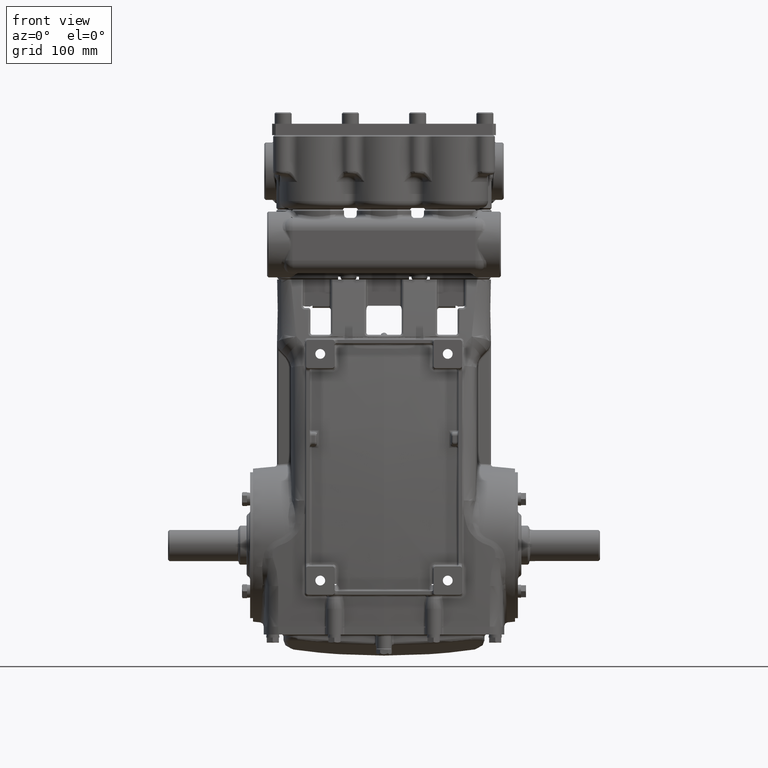
[diagram: clean part render]
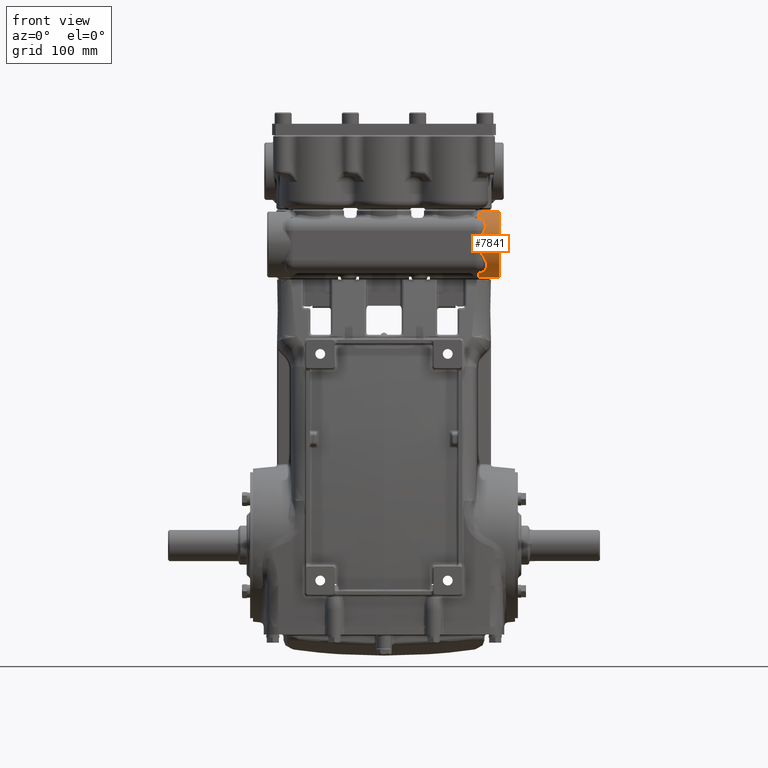
[diagram: same view with one face highlighted and labeled with its STEP entity id]
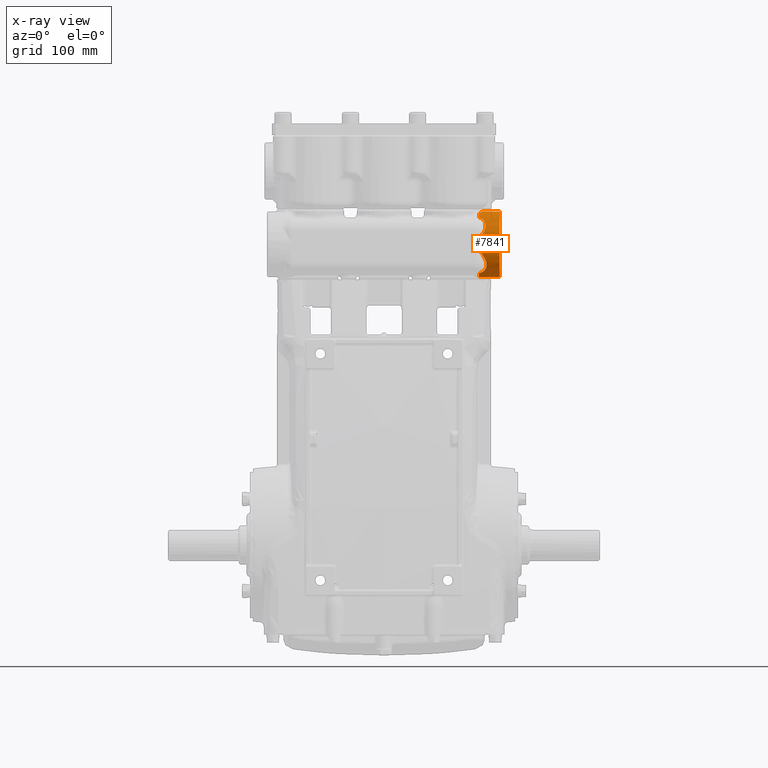
[diagram: x-ray of the same camera — body ghosted, the highlighted face saturated]
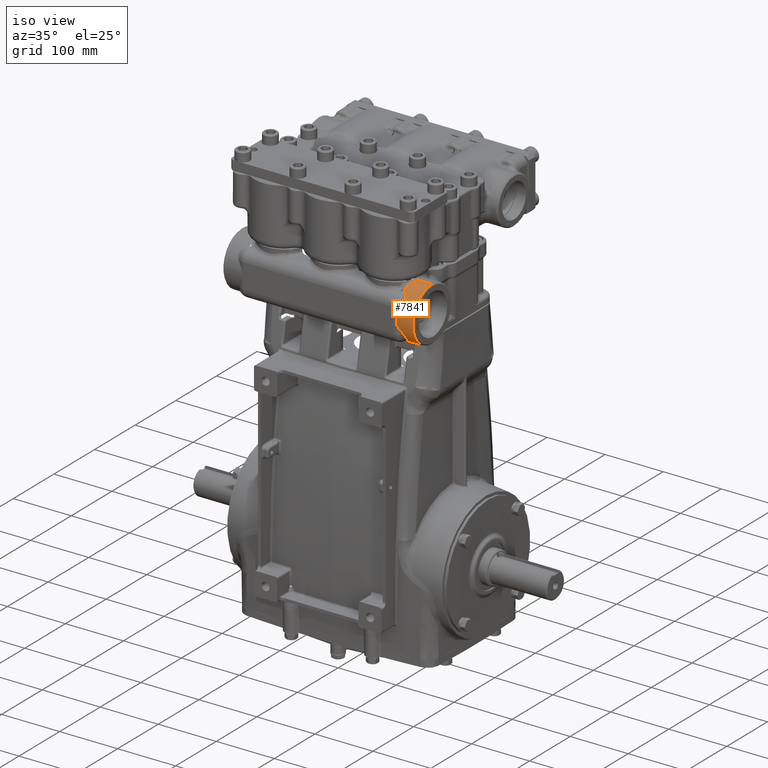
[diagram: same view with one face highlighted and labeled with its STEP entity id]
A machine part, front view. The second image highlights one B-rep face of the part: STEP entity #7841.
The next image is the same camera in x-ray: the body ghosted, the highlighted face saturated — about 0% of this face is hidden behind the body in this view.
A second angle (iso view) of the same face is appended — the face is thin or edge-on in the first view.
In plain terms, the highlighted cylindrical surface (edge-blend (fillet) strip) has radius 46.5 mm, axis along (1, -0, -0).
Its self-contained STEP definition (entity closure, byte-faithful):
#371 = CARTESIAN_POINT ( 'NONE',  ( 5.275590551181106314, -5.823880917355877429, 16.99921606258273243 ) ) ;
#743 = CARTESIAN_POINT ( 'NONE',  ( 5.499922897870840544, -5.054010725184167718, 15.20448149480859357 ) ) ;
#1031 = AXIS2_PLACEMENT_3D ( 'NONE', #23275, #89001, #32749 ) ;
#1131 = VERTEX_POINT ( 'NONE', #85562 ) ;
#2157 = EDGE_CURVE ( 'NONE', #10489, #29396, #15134, .T. ) ;
#2613 = CARTESIAN_POINT ( 'NONE',  ( 5.656548045205660458, -5.258997049725187445, 15.36813760360032965 ) ) ;
#3132 = VECTOR ( 'NONE', #111522, 39.37007874015748143 ) ;
#3749 = CARTESIAN_POINT ( 'NONE',  ( 5.503686642343247115, -5.736723041215215702, 16.08192666256993064 ) ) ;
#3839 = CARTESIAN_POINT ( 'NONE',  ( 5.640386089972917460, -5.491121559497486260, 17.79674049634362731 ) ) ;
#5999 = VERTEX_POINT ( 'NONE', #24970 ) ;
#7191 = CIRCLE ( 'NONE', #53585, 1.830708661417322247 ) ;
#7355 = EDGE_CURVE ( 'NONE', #29396, #5999, #27331, .T. ) ;
#7691 = CIRCLE ( 'NONE', #68255, 1.830708661417322247 ) ;
#7841 = ADVANCED_FACE ( 'NONE', ( #78138 ), #11142, .T. ) ;
#8512 = B_SPLINE_CURVE_WITH_KNOTS ( 'NONE', 3,
 ( #68158, #106689, #20131, #97189, #49179, #87745, #116787, #11271, #40318, #78875 ),
 .UNSPECIFIED., .F., .F.,
 ( 4, 2, 2, 2, 4 ),
 ( 0.000000000000000000, 0.006745987145740504898, 0.008432483932175645000, 0.01011898071861078684, 0.01349197429148105490 ),
 .UNSPECIFIED. ) ;
#10489 = VERTEX_POINT ( 'NONE', #97597 ) ;
#10849 = CARTESIAN_POINT ( 'NONE',  ( 5.701275311853826189, -5.407650408526676777, 15.52262879297569675 ) ) ;
#11142 = CYLINDRICAL_SURFACE ( 'NONE', #33179, 1.830708661417322247 ) ;
#11271 = CARTESIAN_POINT ( 'NONE',  ( 5.472028535494968260, -4.103771337933483032, 18.54171610406571702 ) ) ;
#11513 = EDGE_CURVE ( 'NONE', #43231, #86462, #109648, .T. ) ;
#12091 = CARTESIAN_POINT ( 'NONE',  ( 5.702098208237284638, -5.489266280316124735, 15.62533155644166349 ) ) ;
#12445 = CARTESIAN_POINT ( 'NONE',  ( 5.275590551181106314, -4.015748031496062964, 16.71259842519685179 ) ) ;
#12719 = CARTESIAN_POINT ( 'NONE',  ( 5.610699835872200225, -5.384818885946142331, 17.92893340279580983 ) ) ;
#12723 = CARTESIAN_POINT ( 'NONE',  ( 5.674798349989620405, -5.304067721089901433, 15.41176646634126435 ) ) ;
#13347 = CARTESIAN_POINT ( 'NONE',  ( 5.529311976564618369, -5.259276195082421168, 18.05632102367488656 ) ) ;
#15134 = B_SPLINE_CURVE_WITH_KNOTS ( 'NONE', 3,
 ( #64835, #83184, #123617, #93906, #122983, #75582 ),
 .UNSPECIFIED., .F., .F.,
 ( 4, 2, 4 ),
 ( 0.000000000000000000, 0.002970488059944385254, 0.005940976119888770508 ),
 .UNSPECIFIED. ) ;
#15580 = DIRECTION ( 'NONE',  ( 1.000000000000000000, -0.000000000000000000, -0.000000000000000000 ) ) ;
#16284 = CARTESIAN_POINT ( 'NONE',  ( 5.457186512856898375, -5.760539017075157808, 17.27129155737154065 ) ) ;
#18172 = CARTESIAN_POINT ( 'NONE',  ( 5.500601433518036210, -5.737619528903532107, 17.33863064165883472 ) ) ;
#18233 = CARTESIAN_POINT ( 'NONE',  ( 5.334814786968212097, -5.810073909888404664, 16.33887901527194941 ) ) ;
#18803 = CARTESIAN_POINT ( 'NONE',  ( 5.322229960190044906, -5.813007823597769352, 17.06780918397743463 ) ) ;
#18861 = CARTESIAN_POINT ( 'NONE',  ( 5.392547348401467211, -5.790026689860666487, 16.25277552589246355 ) ) ;
#19385 = CARTESIAN_POINT ( 'NONE',  ( 6.417322834645668550, -4.015748031496062964, 14.88188976377952777 ) ) ;
#20131 = CARTESIAN_POINT ( 'NONE',  ( 5.411966838566292459, -4.362243933414855945, 18.51226586796160589 ) ) ;
#20155 = CARTESIAN_POINT ( 'NONE',  ( 5.342221381026297955, -4.520976357897072972, 18.47221160461738521 ) ) ;
#20457 = LINE ( 'NONE', #97516, #27840 ) ;
#22206 = CARTESIAN_POINT ( 'NONE',  ( 5.628440223111497609, -5.611079984709542501, 17.61192202127887185 ) ) ;
#22832 = CARTESIAN_POINT ( 'NONE',  ( 5.627304635913924713, -5.431480499989117305, 17.87353712963162877 ) ) ;
#23157 = CARTESIAN_POINT ( 'NONE',  ( 5.342221381026297955, -4.520976357897072972, 18.47221160461738521 ) ) ;
#23275 = CARTESIAN_POINT ( 'NONE',  ( 5.275590551181106314, -4.015748031496062964, 16.71259842519685179 ) ) ;
#23967 = VERTEX_POINT ( 'NONE', #19385 ) ;
#24055 = CARTESIAN_POINT ( 'NONE',  ( 5.362421671871127948, -5.122108914979491168, 18.17151630142248564 ) ) ;
#24673 = CARTESIAN_POINT ( 'NONE',  ( 5.642573905516139909, -5.519526995997076746, 17.75698336547608491 ) ) ;
#24711 = CARTESIAN_POINT ( 'NONE',  ( 5.484303537921753069, -4.015748031496404913, 18.54330708661417404 ) ) ;
#24970 = CARTESIAN_POINT ( 'NONE',  ( 5.607269608051505649, -5.662494975058088187, 15.91277425273296942 ) ) ;
#25060 = CARTESIAN_POINT ( 'NONE',  ( 6.417322834645668550, -4.015748031496062964, 16.71259842519685179 ) ) ;
#27223 = VERTEX_POINT ( 'NONE', #94106 ) ;
#27331 = B_SPLINE_CURVE_WITH_KNOTS ( 'NONE', 3,
 ( #106893, #743, #108760, #40530, #58892, #98654, #30444, #79719, #2613, #12723, #41155, #68987, #97404, #10849, #49391, #12091, #118245, #60149, #89817, #115748, #87958, #78463 ),
 .UNSPECIFIED., .F., .F.,
 ( 4, 2, 2, 2, 2, 2, 2, 2, 2, 2, 4 ),
 ( 0.000000000000000000, 0.003340412000077014418, 0.005010618000115561743, 0.006680824000154108634, 0.01002123600023107144, 0.01169144200026945614, 0.01336164800030784083, 0.01670206000038462063, 0.02004247200046140390, 0.02338288400053818369, 0.02672329600061496349 ),
 .UNSPECIFIED. ) ;
#27840 = VECTOR ( 'NONE', #78568, 39.37007874015748143 ) ;
#29396 = VERTEX_POINT ( 'NONE', #35318 ) ;
#29494 = DIRECTION ( 'NONE',  ( 1.000000000000000000, -0.000000000000000000, -0.000000000000000000 ) ) ;
#30000 = CARTESIAN_POINT ( 'NONE',  ( 5.275590551181106314, -5.084662412348148308, 18.19884075045744254 ) ) ;
#30444 = CARTESIAN_POINT ( 'NONE',  ( 5.612645616349634103, -5.183361513595022174, 15.30243337742297705 ) ) ;
#31693 = CARTESIAN_POINT ( 'NONE',  ( 5.542366210801288773, -5.710148920979450260, 17.40577937466554204 ) ) ;
#32307 = CARTESIAN_POINT ( 'NONE',  ( 5.638218642197397656, -5.476565052980689963, 17.81627328334244709 ) ) ;
#32749 = DIRECTION ( 'NONE',  ( 0.000000000000000000, 0.000000000000000000, 1.000000000000000000 ) ) ;
#33179 = AXIS2_PLACEMENT_3D ( 'NONE', #70517, #29494, #88251 ) ;
#33310 = DIRECTION ( 'NONE',  ( 0.000000000000000000, 0.000000000000000000, -1.000000000000000000 ) ) ;
#34152 = CARTESIAN_POINT ( 'NONE',  ( 5.565976644050286914, -5.693238397904960557, 17.44610401388247212 ) ) ;
#35171 = ORIENTED_EDGE ( 'NONE', *, *, #101041, .T. ) ;
#35318 = CARTESIAN_POINT ( 'NONE',  ( 5.467301653468178202, -5.028858649950309179, 15.18777021265497318 ) ) ;
#37958 = EDGE_CURVE ( 'NONE', #39341, #106650, #7191, .T. ) ;
#39079 = ORIENTED_EDGE ( 'NONE', *, *, #2157, .F. ) ;
#39099 = AXIS2_PLACEMENT_3D ( 'NONE', #25060, #15580, #33310 ) ;
#39341 = VERTEX_POINT ( 'NONE', #49455 ) ;
#39646 = DIRECTION ( 'NONE',  ( -1.000000000000000000, 0.000000000000000000, 0.000000000000000000 ) ) ;
#40318 = CARTESIAN_POINT ( 'NONE',  ( 5.478792807520385999, -4.059834108161922472, 18.54330708661416693 ) ) ;
#40530 = CARTESIAN_POINT ( 'NONE',  ( 5.567525947559021304, -5.123794189119414533, 15.25518873421946608 ) ) ;
#41149 = CARTESIAN_POINT ( 'NONE',  ( 5.640442913383550305, -5.560351276405778975, 17.69560420649184351 ) ) ;
#41155 = CARTESIAN_POINT ( 'NONE',  ( 5.680069651795125907, -5.319037376993493993, 15.42675564050555259 ) ) ;
#42110 = DIRECTION ( 'NONE',  ( 0.000000000000000000, 0.000000000000000000, 1.000000000000000000 ) ) ;
#42366 = CARTESIAN_POINT ( 'NONE',  ( 5.418929541191783272, -5.159290298974252842, 18.14224079928084166 ) ) ;
#42991 = CARTESIAN_POINT ( 'NONE',  ( 5.638248019314373138, -5.573518908239316616, 17.67459493801034043 ) ) ;
#43231 = VERTEX_POINT ( 'NONE', #87731 ) ;
#44134 = CARTESIAN_POINT ( 'NONE',  ( 5.607269608051505649, -5.662494975058088187, 15.91277425273296942 ) ) ;
#44502 = LINE ( 'NONE', #82458, #3132 ) ;
#49179 = CARTESIAN_POINT ( 'NONE',  ( 5.445532513482506332, -4.234596831974558384, 18.53030950919713504 ) ) ;
#49391 = CARTESIAN_POINT ( 'NONE',  ( 5.703650591215259524, -5.435690339368621338, 15.55623813713260795 ) ) ;
#49455 = CARTESIAN_POINT ( 'NONE',  ( 5.275590551181106314, -5.823880917355878317, 16.42598078781097115 ) ) ;
#51214 = EDGE_CURVE ( 'NONE', #1131, #23967, #119826, .T. ) ;
#53585 = AXIS2_PLACEMENT_3D ( 'NONE', #12445, #39646, #42110 ) ;
#54489 = ORIENTED_EDGE ( 'NONE', *, *, #7355, .F. ) ;
#55214 = B_SPLINE_CURVE_WITH_KNOTS ( 'NONE', 3,
 ( #44134, #90342, #3749, #18861, #18233, #56772 ),
 .UNSPECIFIED., .F., .F.,
 ( 4, 2, 4 ),
 ( 0.000000000000000000, 0.008026534301221167900, 0.01605306860244233580 ),
 .UNSPECIFIED. ) ;
#55785 = EDGE_LOOP ( 'NONE', ( #100670, #35171, #61145, #113651, #66262, #102590, #114859, #64657, #99956, #90934, #91776, #54489, #39079 ) ) ;
#56095 = CARTESIAN_POINT ( 'NONE',  ( 5.542366210801288773, -5.710148920979450260, 17.40577937466554204 ) ) ;
#56772 = CARTESIAN_POINT ( 'NONE',  ( 5.275590551181106314, -5.823880917355878317, 16.42598078781097115 ) ) ;
#58892 = CARTESIAN_POINT ( 'NONE',  ( 5.579597225021973195, -5.138379768122748104, 15.26637804658916053 ) ) ;
#59696 = EDGE_CURVE ( 'NONE', #77049, #82683, #8512, .T. ) ;
#60149 = CARTESIAN_POINT ( 'NONE',  ( 5.683503881582229411, -5.563312305278904191, 15.73359469874965733 ) ) ;
#60749 = CARTESIAN_POINT ( 'NONE',  ( 5.595330498188521240, -5.353351148162826867, 17.96332930190895638 ) ) ;
#61145 = ORIENTED_EDGE ( 'NONE', *, *, #51214, .F. ) ;
#61378 = CARTESIAN_POINT ( 'NONE',  ( 5.445724876870507103, -5.179315559008722758, 18.12599362402991687 ) ) ;
#61999 = CARTESIAN_POINT ( 'NONE',  ( 5.585989659974166521, -5.674630724077692534, 17.48726776774295999 ) ) ;
#62595 = CARTESIAN_POINT ( 'NONE',  ( 5.471055913434535789, -5.200098464532567633, 18.10871194474536949 ) ) ;
#63209 = CARTESIAN_POINT ( 'NONE',  ( 5.554077043376375755, -5.290365418876165293, 18.02686751145024502 ) ) ;
#64109 = B_SPLINE_CURVE_WITH_KNOTS ( 'NONE', 3,
 ( #93359, #18803, #103466, #16284, #18172, #56095 ),
 .UNSPECIFIED., .F., .F.,
 ( 4, 2, 4 ),
 ( 0.000000000000000000, 0.006342349309072336030, 0.01268469861814467206 ),
 .UNSPECIFIED. ) ;
#64490 = DIRECTION ( 'NONE',  ( 0.000000000000000000, 0.000000000000000000, 1.000000000000000000 ) ) ;
#64657 = ORIENTED_EDGE ( 'NONE', *, *, #11513, .F. ) ;
#64835 = CARTESIAN_POINT ( 'NONE',  ( 5.275590551181106314, -4.914613447575774785, 15.11775198532740383 ) ) ;
#66097 = VERTEX_POINT ( 'NONE', #91186 ) ;
#66262 = ORIENTED_EDGE ( 'NONE', *, *, #59696, .F. ) ;
#68158 = CARTESIAN_POINT ( 'NONE',  ( 5.342221381026297955, -4.520976357897072972, 18.47221160461738521 ) ) ;
#68255 = AXIS2_PLACEMENT_3D ( 'NONE', #84104, #73988, #64490 ) ;
#68987 = CARTESIAN_POINT ( 'NONE',  ( 5.689017018343682786, -5.348822629831925468, 15.45766141470530286 ) ) ;
#69685 = CIRCLE ( 'NONE', #1031, 1.830708661417322247 ) ;
#70224 = CARTESIAN_POINT ( 'NONE',  ( 5.554748464825669529, -5.702004545080753495, 17.42568736229505078 ) ) ;
#70517 = CARTESIAN_POINT ( 'NONE',  ( 6.496062992125983371, -4.015748031496062964, 16.71259842519685179 ) ) ;
#70836 = CARTESIAN_POINT ( 'NONE',  ( 5.631683065869945715, -5.446759530251675585, 17.85465387621101030 ) ) ;
#71460 = CARTESIAN_POINT ( 'NONE',  ( 5.565314500926090702, -5.306164120355459701, 18.01137647620230808 ) ) ;
#72672 = CARTESIAN_POINT ( 'NONE',  ( 5.486733092156604208, -5.214477777678487413, 18.09640896767488272 ) ) ;
#73988 = DIRECTION ( 'NONE',  ( -1.000000000000000000, 0.000000000000000000, 0.000000000000000000 ) ) ;
#75278 = EDGE_CURVE ( 'NONE', #86462, #66097, #69685, .T. ) ;
#75582 = CARTESIAN_POINT ( 'NONE',  ( 5.467301653468178202, -5.028858649950309179, 15.18777021265497318 ) ) ;
#77049 = VERTEX_POINT ( 'NONE', #23157 ) ;
#78138 = FACE_OUTER_BOUND ( 'NONE', #55785, .T. ) ;
#78463 = CARTESIAN_POINT ( 'NONE',  ( 5.607269608051505649, -5.662494975058088187, 15.91277425273296942 ) ) ;
#78568 = DIRECTION ( 'NONE',  ( 1.000000000000000000, -0.000000000000000000, -0.000000000000000000 ) ) ;
#78875 = CARTESIAN_POINT ( 'NONE',  ( 5.484303537921753069, -4.015748031496404913, 18.54330708661417404 ) ) ;
#79719 = CARTESIAN_POINT ( 'NONE',  ( 5.641157441715406229, -5.228727809790808756, 15.34083158252558832 ) ) ;
#80331 = CARTESIAN_POINT ( 'NONE',  ( 5.594756750925950151, -5.664821515404662833, 17.50795243709235649 ) ) ;
#80936 = CARTESIAN_POINT ( 'NONE',  ( 5.275590551181106314, -5.084662412348148308, 18.19884075045744254 ) ) ;
#82458 = CARTESIAN_POINT ( 'NONE',  ( 6.496062992125983371, -4.015748031496062964, 14.88188976377952777 ) ) ;
#82683 = VERTEX_POINT ( 'NONE', #24711 ) ;
#83184 = CARTESIAN_POINT ( 'NONE',  ( 5.311306422686179474, -4.929387020770411354, 15.12607846346636542 ) ) ;
#84104 = CARTESIAN_POINT ( 'NONE',  ( 5.275590551181106314, -4.015748031496062964, 16.71259842519685179 ) ) ;
#85562 = CARTESIAN_POINT ( 'NONE',  ( 6.417322834645668550, -4.015748031496062964, 18.54330708661417404 ) ) ;
#86462 = VERTEX_POINT ( 'NONE', #30000 ) ;
#86510 = CARTESIAN_POINT ( 'NONE',  ( 5.321528254811164871, -4.560549237094163821, 18.46084925534571042 ) ) ;
#87731 = CARTESIAN_POINT ( 'NONE',  ( 5.542366210801288773, -5.710148920979450260, 17.40577937466554204 ) ) ;
#87745 = CARTESIAN_POINT ( 'NONE',  ( 5.455242481889395201, -4.191298914177570722, 18.53500076001705210 ) ) ;
#87958 = CARTESIAN_POINT ( 'NONE',  ( 5.628191255017330974, -5.645388852531783463, 15.87755469328953239 ) ) ;
#88251 = DIRECTION ( 'NONE',  ( 0.000000000000000000, 0.000000000000000000, 1.000000000000000000 ) ) ;
#88397 = CARTESIAN_POINT ( 'NONE',  ( 5.275590551181106314, -4.636054132642701830, 18.43501374789595459 ) ) ;
#89001 = DIRECTION ( 'NONE',  ( -1.000000000000000000, 0.000000000000000000, 0.000000000000000000 ) ) ;
#89817 = CARTESIAN_POINT ( 'NONE',  ( 5.672979026422386717, -5.585595971496529089, 15.76984292812224808 ) ) ;
#90342 = CARTESIAN_POINT ( 'NONE',  ( 5.557123029489937416, -5.703496217386206268, 15.99719114435814227 ) ) ;
#90530 = B_SPLINE_CURVE_WITH_KNOTS ( 'NONE', 3,
 ( #88397, #117436, #86510, #20155 ),
 .UNSPECIFIED., .F., .F.,
 ( 4, 4 ),
 ( 1.387778780781445676E-17, 0.003507246336303558240 ),
 .UNSPECIFIED. ) ;
#90934 = ORIENTED_EDGE ( 'NONE', *, *, #37958, .F. ) ;
#91186 = CARTESIAN_POINT ( 'NONE',  ( 5.275590551181106314, -4.636054132642701830, 18.43501374789595459 ) ) ;
#91647 = CARTESIAN_POINT ( 'NONE',  ( 5.409698882334846637, -5.152904053362325598, 18.14732199896096887 ) ) ;
#91776 = ORIENTED_EDGE ( 'NONE', *, *, #105405, .F. ) ;
#93359 = CARTESIAN_POINT ( 'NONE',  ( 5.275590551181106314, -5.823880917355877429, 16.99921606258273243 ) ) ;
#93906 = CARTESIAN_POINT ( 'NONE',  ( 5.408262970811077430, -4.985522087469149710, 15.15968433869971221 ) ) ;
#94106 = CARTESIAN_POINT ( 'NONE',  ( 5.275590551181106314, -4.015748031496062964, 14.88188976377952777 ) ) ;
#97189 = CARTESIAN_POINT ( 'NONE',  ( 5.440296184621470132, -4.256047389548181847, 18.52759454874188805 ) ) ;
#97404 = CARTESIAN_POINT ( 'NONE',  ( 5.692702720712284226, -5.363689393861416299, 15.47363526026257929 ) ) ;
#97516 = CARTESIAN_POINT ( 'NONE',  ( 6.496062992125983371, -4.015748031496062964, 18.54330708661417404 ) ) ;
#97597 = CARTESIAN_POINT ( 'NONE',  ( 5.275590551181106314, -4.914613447575774785, 15.11775198532740383 ) ) ;
#98654 = CARTESIAN_POINT ( 'NONE',  ( 5.602163177159859231, -5.168161935990471356, 15.28999602385289869 ) ) ;
#99278 = CARTESIAN_POINT ( 'NONE',  ( 5.642594338753259997, -5.533375967039812160, 17.73675905688614662 ) ) ;
#99911 = CARTESIAN_POINT ( 'NONE',  ( 5.321066600126542312, -5.101042530678988385, 18.18706007125976498 ) ) ;
#99956 = ORIENTED_EDGE ( 'NONE', *, *, #114304, .F. ) ;
#100519 = CARTESIAN_POINT ( 'NONE',  ( 5.617659656316320138, -5.633826201457839744, 17.57019149023575011 ) ) ;
#100670 = ORIENTED_EDGE ( 'NONE', *, *, #106927, .F. ) ;
#101041 = EDGE_CURVE ( 'NONE', #27223, #23967, #44502, .T. ) ;
#102590 = ORIENTED_EDGE ( 'NONE', *, *, #109562, .F. ) ;
#103466 = CARTESIAN_POINT ( 'NONE',  ( 5.368004559987824997, -5.798236967652348639, 17.13587940962407075 ) ) ;
#105405 = EDGE_CURVE ( 'NONE', #5999, #39341, #55214, .T. ) ;
#106650 = VERTEX_POINT ( 'NONE', #371 ) ;
#106689 = CARTESIAN_POINT ( 'NONE',  ( 5.382549209475683938, -4.443854696002338400, 18.49435513515240714 ) ) ;
#106892 = EDGE_CURVE ( 'NONE', #82683, #1131, #20457, .T. ) ;
#106893 = CARTESIAN_POINT ( 'NONE',  ( 5.467301653468178202, -5.028858649950309179, 15.18777021265497318 ) ) ;
#106927 = EDGE_CURVE ( 'NONE', #27223, #10489, #7691, .T. ) ;
#108760 = CARTESIAN_POINT ( 'NONE',  ( 5.528886835426989776, -5.081091896670029584, 15.22337143810397109 ) ) ;
#109562 = EDGE_CURVE ( 'NONE', #66097, #77049, #90530, .T. ) ;
#109648 = B_SPLINE_CURVE_WITH_KNOTS ( 'NONE', 3,
 ( #31693, #70224, #34152, #61999, #80331, #100519, #22206, #42991, #41149, #99278, #24673, #3839, #32307, #70836, #22832, #12719, #60749, #71460, #63209, #13347, #111225, #72672, #62595, #61378, #119472, #42366, #91647, #24055, #99911, #80936 ),
 .UNSPECIFIED., .F., .F.,
 ( 4, 2, 2, 2, 2, 2, 2, 2, 2, 2, 2, 2, 2, 2, 4 ),
 ( 0.000000000000000000, 0.001889472993287521791, 0.003778945986575043582, 0.007557891973149907620, 0.009447364966437337905, 0.01133683795972476906, 0.01322631095301220194, 0.01511578394629963136, 0.01889472993287447458, 0.02078420292616189879, 0.02267367591944931607, 0.02456314891273674028, 0.02550788540938047147, 0.02645262190602420960, 0.03023156789259913435 ),
 .UNSPECIFIED. ) ;
#111225 = CARTESIAN_POINT ( 'NONE',  ( 5.515861588297964246, -5.244066256950480565, 18.07021359853296616 ) ) ;
#111522 = DIRECTION ( 'NONE',  ( 1.000000000000000000, -0.000000000000000000, -0.000000000000000000 ) ) ;
#113651 = ORIENTED_EDGE ( 'NONE', *, *, #106892, .F. ) ;
#114304 = EDGE_CURVE ( 'NONE', #106650, #43231, #64109, .T. ) ;
#114859 = ORIENTED_EDGE ( 'NONE', *, *, #75278, .F. ) ;
#115748 = CARTESIAN_POINT ( 'NONE',  ( 5.645320125897149488, -5.626635283556335132, 15.84182133366435608 ) ) ;
#116787 = CARTESIAN_POINT ( 'NONE',  ( 5.459721063678680153, -4.169419345507103358, 18.53697795695501682 ) ) ;
#117436 = CARTESIAN_POINT ( 'NONE',  ( 5.299291750228900533, -4.598877899740646313, 18.44840229813867793 ) ) ;
#118245 = CARTESIAN_POINT ( 'NONE',  ( 5.698158521356432971, -5.514843077711163666, 15.66087720724037524 ) ) ;
#119472 = CARTESIAN_POINT ( 'NONE',  ( 5.436945430113119038, -5.172496533437382027, 18.13157662747558518 ) ) ;
#119826 = CIRCLE ( 'NONE', #39099, 1.830708661417322247 ) ;
#122983 = CARTESIAN_POINT ( 'NONE',  ( 5.438416968489328873, -5.006587587549177876, 15.17297310330373072 ) ) ;
#123617 = CARTESIAN_POINT ( 'NONE',  ( 5.344699560708526143, -4.946932400429530752, 15.13624200904798478 ) ) ;